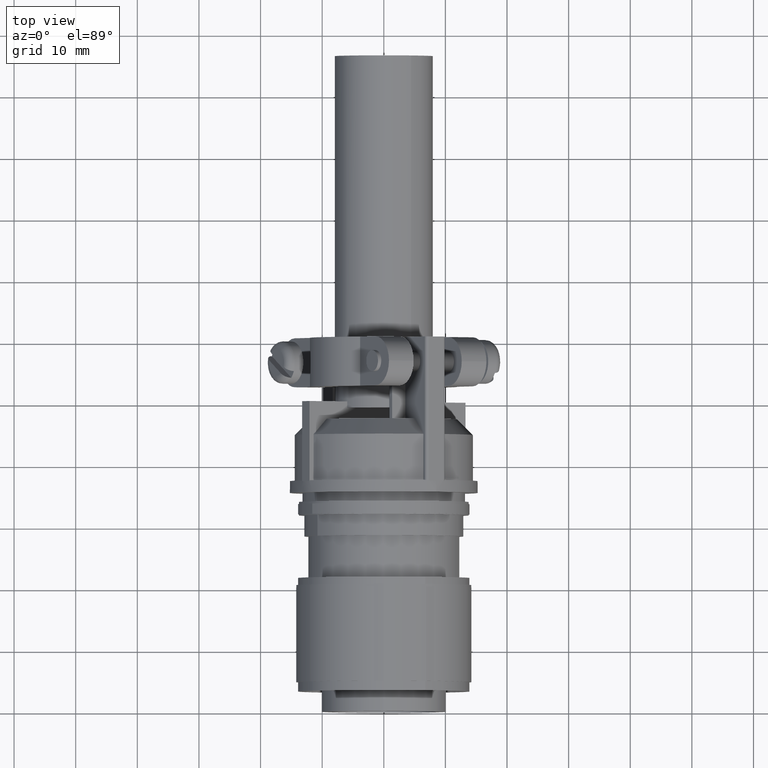
[diagram: clean part render]
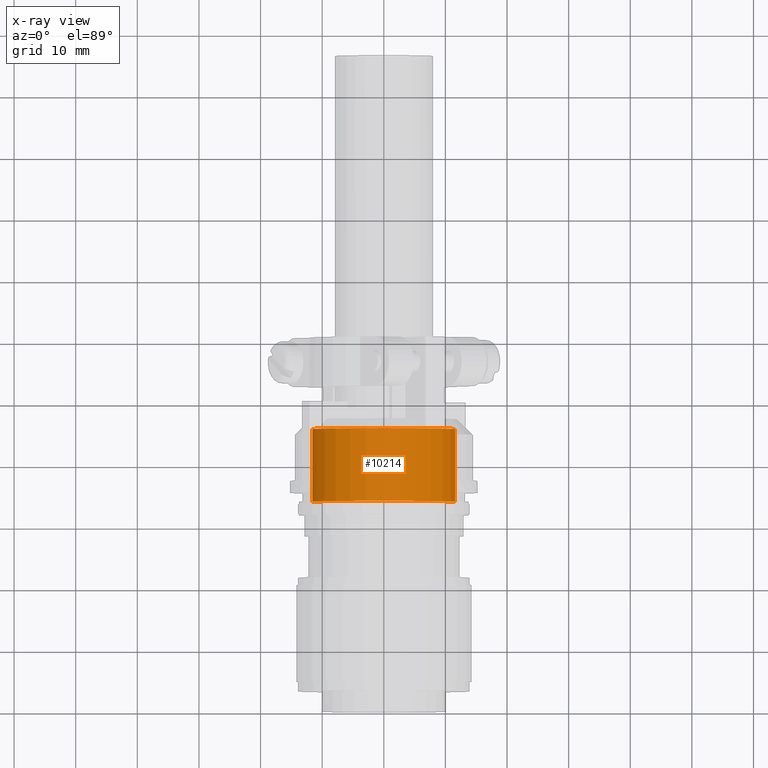
[diagram: x-ray — body ghosted, one internal face saturated and labeled with its STEP entity id]
A machine part, top view, then the same camera in x-ray: the body is ghosted and one INTERNAL B-rep face — a face not visible from any outside direction — is saturated and labeled: STEP entity #10214.
In plain terms, the highlighted cylindrical surface (partial cylindrical patch) has radius 11.684 mm, axis along (0, 1, -0).
Its self-contained STEP definition (entity closure, byte-faithful):
#1599 = AXIS2_PLACEMENT_3D ( 'NONE', #14658, #14659, #14661 ) ;
#1600 = AXIS2_PLACEMENT_3D ( 'NONE', #14668, #14669, #14671 ) ;
#3500 = DIRECTION ( 'NONE',  ( -1.000000000000000000, 0.0000000000000000000, 0.0000000000000000000 ) ) ;
#3505 = DIRECTION ( 'NONE',  ( -0.0000000000000000000, -0.0000000000000000000, -1.000000000000000000 ) ) ;
#3508 = CARTESIAN_POINT ( 'NONE',  ( 0.0000000000000000000, 0.0000000000000000000, 0.4650000000000000200 ) ) ;
#3781 = LINE ( 'NONE', #14656, #3794 ) ;
#3784 = LINE ( 'NONE', #14640, #3788 ) ;
#3786 = CIRCLE ( 'NONE', #1599, 0.4600000000000000200 ) ;
#3788 = VECTOR ( 'NONE', #14632, 39.37007874015748100 ) ;
#3792 = CIRCLE ( 'NONE', #1600, 0.4600000000000000200 ) ;
#3794 = VECTOR ( 'NONE', #14643, 39.37007874015748100 ) ;
#10214 = ADVANCED_FACE ( 'NONE', ( #18153 ), #18168, .T. ) ;
#11163 = EDGE_LOOP ( 'NONE', ( #15748, #15747, #15746, #15745 ) ) ;
#14180 = CARTESIAN_POINT ( 'NONE',  ( 0.4600000000000000200, 5.633375276077824600E-017, 0.4650000000000000200 ) ) ;
#14181 = CARTESIAN_POINT ( 'NONE',  ( -0.4600000000000000200, 0.0000000000000000000, 0.4650000000000000200 ) ) ;
#14187 = CARTESIAN_POINT ( 'NONE',  ( 0.4600000000000000200, 5.633375276077824600E-017, 0.0000000000000000000 ) ) ;
#14190 = CARTESIAN_POINT ( 'NONE',  ( -0.4600000000000000200, 0.0000000000000000000, 0.0000000000000000000 ) ) ;
#14632 = DIRECTION ( 'NONE',  ( -0.0000000000000000000, -0.0000000000000000000, -1.000000000000000000 ) ) ;
#14640 = CARTESIAN_POINT ( 'NONE',  ( -0.4600000000000000200, 0.0000000000000000000, 0.4650000000000000200 ) ) ;
#14643 = DIRECTION ( 'NONE',  ( -0.0000000000000000000, -0.0000000000000000000, -1.000000000000000000 ) ) ;
#14656 = CARTESIAN_POINT ( 'NONE',  ( 0.4600000000000000200, 5.633375276077824600E-017, 0.4650000000000000200 ) ) ;
#14658 = CARTESIAN_POINT ( 'NONE',  ( 0.0000000000000000000, 0.0000000000000000000, 0.0000000000000000000 ) ) ;
#14659 = DIRECTION ( 'NONE',  ( 0.0000000000000000000, 0.0000000000000000000, 1.000000000000000000 ) ) ;
#14661 = DIRECTION ( 'NONE',  ( 1.000000000000000000, 0.0000000000000000000, 0.0000000000000000000 ) ) ;
#14668 = CARTESIAN_POINT ( 'NONE',  ( 0.0000000000000000000, 0.0000000000000000000, 0.4650000000000000200 ) ) ;
#14669 = DIRECTION ( 'NONE',  ( 0.0000000000000000000, 0.0000000000000000000, 1.000000000000000000 ) ) ;
#14671 = DIRECTION ( 'NONE',  ( 1.000000000000000000, 0.0000000000000000000, 0.0000000000000000000 ) ) ;
#15745 = ORIENTED_EDGE ( 'NONE', *, *, #16868, .F. ) ;
#15746 = ORIENTED_EDGE ( 'NONE', *, *, #16869, .T. ) ;
#15747 = ORIENTED_EDGE ( 'NONE', *, *, #16870, .T. ) ;
#15748 = ORIENTED_EDGE ( 'NONE', *, *, #16871, .F. ) ;
#16259 = VERTEX_POINT ( 'NONE', #14180 ) ;
#16260 = VERTEX_POINT ( 'NONE', #14181 ) ;
#16266 = VERTEX_POINT ( 'NONE', #14187 ) ;
#16269 = VERTEX_POINT ( 'NONE', #14190 ) ;
#16750 = AXIS2_PLACEMENT_3D ( 'NONE', #3508, #3505, #3500 ) ;
#16868 = EDGE_CURVE ( 'NONE', #16260, #16269, #3784, .T. ) ;
#16869 = EDGE_CURVE ( 'NONE', #16266, #16269, #3786, .T. ) ;
#16870 = EDGE_CURVE ( 'NONE', #16259, #16266, #3781, .T. ) ;
#16871 = EDGE_CURVE ( 'NONE', #16259, #16260, #3792, .T. ) ;
#18153 = FACE_OUTER_BOUND ( 'NONE', #11163, .T. ) ;
#18168 = CYLINDRICAL_SURFACE ( 'NONE', #16750, 0.4600000000000000200 ) ;